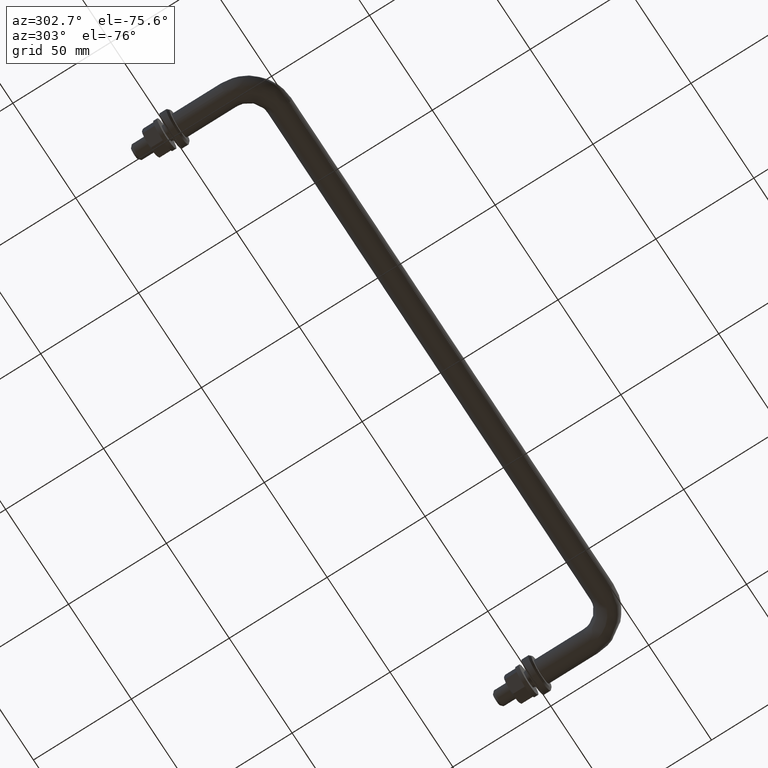
[diagram: clean part render]
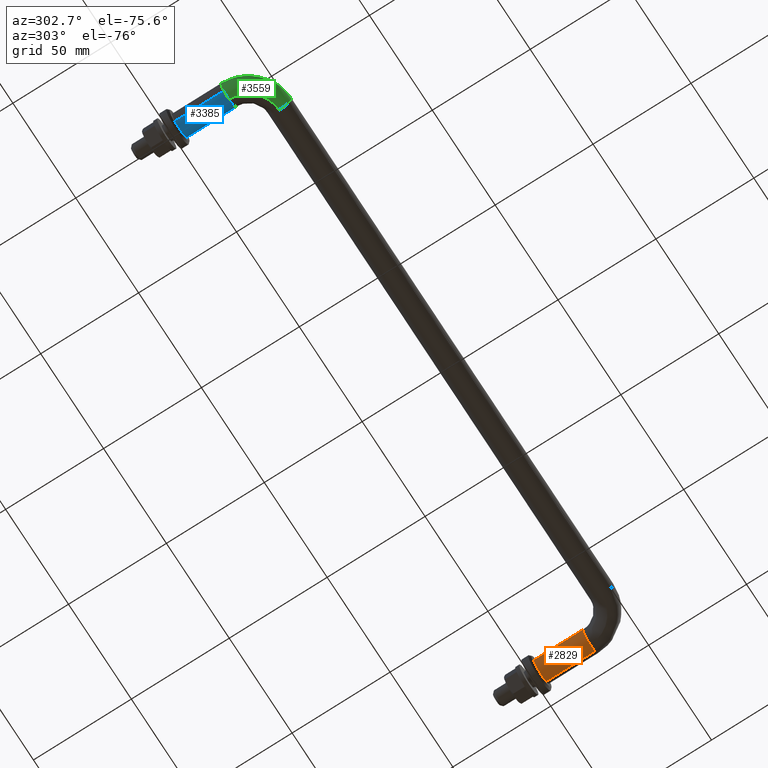
[diagram: same view with three faces highlighted in distinct colors, each labeled with its STEP entity id]
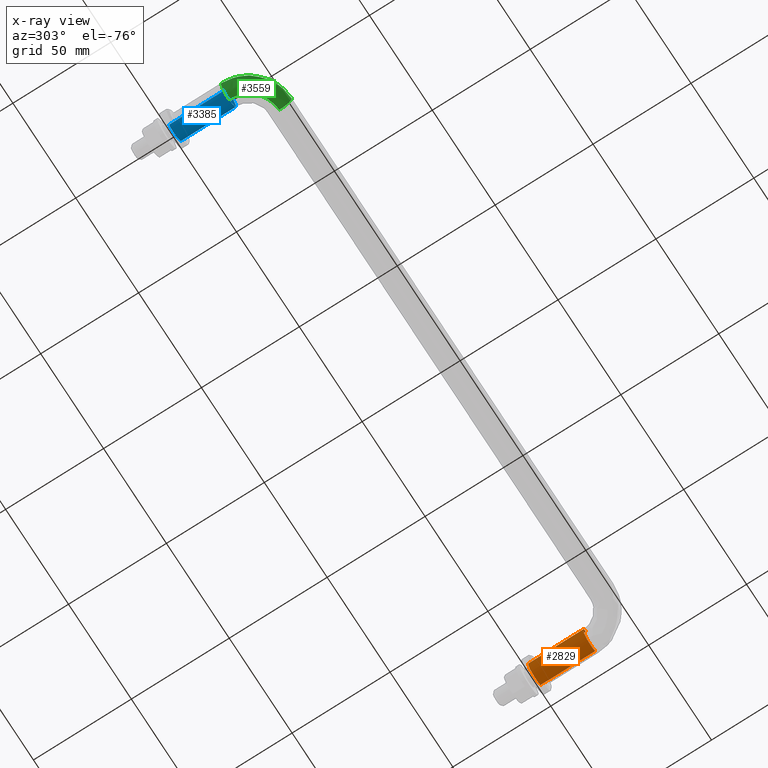
[diagram: x-ray of the same camera — body ghosted, the three highlighted faces saturated]
A machine part, auxiliary view with three faces highlighted in distinct colors.
The next image is the same camera in x-ray (body ghosted, the three faces saturated) — at least one of them is partly hidden behind the body in this view.
Their STEP definitions:

[orange] entity #2829 — the highlighted face is a freeform B-spline surface patch.
#2716=CARTESIAN_POINT('',(291.735087819825710,-28.700000002556170,-4.695648941114484));
#2717=CARTESIAN_POINT('',(287.039438878711280,-28.700000002556166,-8.430736760940201));
#2718=CARTESIAN_POINT('',(283.304351058885520,-28.700000002556170,-3.735087819825715));
#2719=CARTESIAN_POINT('',(279.569263239059810,-28.700000002556166,0.960561121288768));
#2720=CARTESIAN_POINT('',(284.264912180174290,-28.700000002556170,4.695648941114484));
#2721=CARTESIAN_POINT('',(291.735087819825710,0.717500000063940,-4.695648941114484));
#2722=CARTESIAN_POINT('',(287.039438878711280,0.717500000063940,-8.430736760940201));
#2723=CARTESIAN_POINT('',(283.304351058885520,0.717500000063939,-3.735087819825715));
#2724=CARTESIAN_POINT('',(279.569263239059810,0.717500000063939,0.960561121288768));
#2725=CARTESIAN_POINT('',(284.264912180174290,0.717500000063939,4.695648941114484));
#2733=(BOUNDED_SURFACE()B_SPLINE_SURFACE(2,1,((#2716,#2721),(#2717,#2722),(#2718,#2723),(#2719,#2724),(#2720,#2725)),.UNSPECIFIED.,.F.,.F.,.U.)B_SPLINE_SURFACE_WITH_KNOTS((3,2,3),(2,2),(0.0,9.941125496954273,19.882250993908549),(0.0,29.417500002620109),.UNSPECIFIED.)GEOMETRIC_REPRESENTATION_ITEM()RATIONAL_B_SPLINE_SURFACE(((1.0,1.0),(0.707106781186548,0.707106781186548),(1.0,1.0),(0.707106781186548,0.707106781186548),(1.0,1.0)))REPRESENTATION_ITEM('')SURFACE());
#2734=CARTESIAN_POINT('',(287.924603757332190,-28.000000002493820,-5.999526265180574));
#2735=VERTEX_POINT('',#2734);
#2736=CARTESIAN_POINT('',(291.735087819832700,-28.0,-4.695648941108911));
#2737=VERTEX_POINT('',#2736);
#2738=CARTESIAN_POINT('',(287.924603757332190,-28.000000002493820,-5.999526265180574));
#2739=CARTESIAN_POINT('',(287.962300388680550,-28.000000000000007,-6.0));
#2740=CARTESIAN_POINT('',(288.0,-28.0,-6.0));
#2741=CARTESIAN_POINT('',(290.095293800539310,-28.000000000000007,-6.0));
#2742=CARTESIAN_POINT('',(291.735087819832700,-28.000000000000007,-4.695648941108911));
#2750=(BOUNDED_CURVE()B_SPLINE_CURVE(2,(#2738,#2739,#2740,#2741,#2742),.UNSPECIFIED.,.F.,.U.)B_SPLINE_CURVE_WITH_KNOTS((3,2,3),(0.247784295724289,0.250000000000000,0.357863877391897),.UNSPECIFIED.)CURVE()GEOMETRIC_REPRESENTATION_ITEM()RATIONAL_B_SPLINE_CURVE((0.994854295189584,0.997404140970993,1.0,0.873629607027950,0.856305618643925))REPRESENTATION_ITEM(''));
#2751=EDGE_CURVE('',#2735,#2737,#2750,.T.);
#2752=ORIENTED_EDGE('',*,*,#2751,.F.);
#2753=CARTESIAN_POINT('',(282.0,-28.0,0.0));
#2754=VERTEX_POINT('',#2753);
#2755=CARTESIAN_POINT('',(282.0,-28.0,0.0));
#2756=CARTESIAN_POINT('',(282.0,-28.000000000000004,-5.925071572791519));
#2757=CARTESIAN_POINT('',(287.924603757332190,-28.000000002493820,-5.999526265180574));
#2765=(BOUNDED_CURVE()B_SPLINE_CURVE(2,(#2755,#2756,#2757),.UNSPECIFIED.,.F.,.U.)B_SPLINE_CURVE_WITH_KNOTS((3,3),(0.0,0.247784295724289),.UNSPECIFIED.)CURVE()GEOMETRIC_REPRESENTATION_ITEM()RATIONAL_B_SPLINE_CURVE((1.0,0.709702640215554,0.994854295189584))REPRESENTATION_ITEM(''));
#2766=EDGE_CURVE('',#2754,#2735,#2765,.T.);
#2767=ORIENTED_EDGE('',*,*,#2766,.F.);
#2768=CARTESIAN_POINT('',(284.264912180167190,-28.0,4.695648941108897));
#2769=VERTEX_POINT('',#2768);
#2770=CARTESIAN_POINT('',(284.264912180167300,-28.000000000000007,4.695648941108898));
#2771=CARTESIAN_POINT('',(282.000000000000110,-28.0,2.894056444894361));
#2772=CARTESIAN_POINT('',(282.0,-28.0,0.0));
#2780=(BOUNDED_CURVE()B_SPLINE_CURVE(2,(#2770,#2771,#2772),.UNSPECIFIED.,.F.,.U.)B_SPLINE_CURVE_WITH_KNOTS((3,3),(0.857863877391898,1.0),.UNSPECIFIED.)CURVE()GEOMETRIC_REPRESENTATION_ITEM()RATIONAL_B_SPLINE_CURVE((0.856305618643925,0.833477174158598,1.0))REPRESENTATION_ITEM(''));
#2781=EDGE_CURVE('',#2769,#2754,#2780,.T.);
#2782=ORIENTED_EDGE('',*,*,#2781,.F.);
#2783=CARTESIAN_POINT('',(284.264912180170430,3.394507E-014,4.695648941111408));
#2784=VERTEX_POINT('',#2783);
#2785=CARTESIAN_POINT('',(284.264912180167190,-28.0,4.695648941108897));
#2786=CARTESIAN_POINT('',(284.264912180170430,3.394507E-014,4.695648941111408));
#2787=QUASI_UNIFORM_CURVE('',1,(#2785,#2786),.UNSPECIFIED.,.F.,.U.);
#2788=EDGE_CURVE('',#2769,#2784,#2787,.T.);
#2789=ORIENTED_EDGE('',*,*,#2788,.T.);
#2790=CARTESIAN_POINT('',(282.0,3.469447E-014,0.0));
#2791=VERTEX_POINT('',#2790);
#2792=CARTESIAN_POINT('',(284.264912180170480,3.394507E-014,4.695648941111408));
#2793=CARTESIAN_POINT('',(282.000000000000060,3.469447E-014,2.894056444899332));
#2794=CARTESIAN_POINT('',(282.0,3.469447E-014,0.0));
#2802=(BOUNDED_CURVE()B_SPLINE_CURVE(2,(#2792,#2793,#2794),.UNSPECIFIED.,.F.,.U.)B_SPLINE_CURVE_WITH_KNOTS((3,3),(0.857863877391695,1.0),.UNSPECIFIED.)CURVE()GEOMETRIC_REPRESENTATION_ITEM()RATIONAL_B_SPLINE_CURVE((0.856305618643990,0.833477174158360,1.0))REPRESENTATION_ITEM(''));
#2803=EDGE_CURVE('',#2784,#2791,#2802,.T.);
#2804=ORIENTED_EDGE('',*,*,#2803,.T.);
#2805=CARTESIAN_POINT('',(291.735087819829570,3.450018E-014,-4.695648941111406));
#2806=VERTEX_POINT('',#2805);
#2807=CARTESIAN_POINT('',(282.0,3.469447E-014,0.0));
#2808=CARTESIAN_POINT('',(281.999999999999940,3.469447E-014,-6.0));
#2809=CARTESIAN_POINT('',(288.0,3.469447E-014,-6.0));
#2810=CARTESIAN_POINT('',(290.095293800534820,3.469447E-014,-6.0));
#2811=CARTESIAN_POINT('',(291.735087819829630,3.450018E-014,-4.695648941111406));
#2819=(BOUNDED_CURVE()B_SPLINE_CURVE(2,(#2807,#2808,#2809,#2810,#2811),.UNSPECIFIED.,.F.,.U.)B_SPLINE_CURVE_WITH_KNOTS((3,2,3),(0.0,0.250000000000000,0.357863877391695),.UNSPECIFIED.)CURVE()GEOMETRIC_REPRESENTATION_ITEM()RATIONAL_B_SPLINE_CURVE((1.0,0.707106781186548,1.0,0.873629607028187,0.856305618643990))REPRESENTATION_ITEM(''));
#2820=EDGE_CURVE('',#2791,#2806,#2819,.T.);
#2821=ORIENTED_EDGE('',*,*,#2820,.T.);
#2822=CARTESIAN_POINT('',(291.735087819832700,-28.0,-4.695648941108911));
#2823=CARTESIAN_POINT('',(291.735087819829570,3.450018E-014,-4.695648941111406));
#2824=QUASI_UNIFORM_CURVE('',1,(#2822,#2823),.UNSPECIFIED.,.F.,.U.);
#2825=EDGE_CURVE('',#2737,#2806,#2824,.T.);
#2826=ORIENTED_EDGE('',*,*,#2825,.F.);
#2827=EDGE_LOOP('',(#2752,#2767,#2782,#2789,#2804,#2821,#2826));
#2828=FACE_OUTER_BOUND('',#2827,.T.);
#2829=ADVANCED_FACE('',(#2828),#2733,.T.);

[blue] entity #3385 — the highlighted face is a freeform B-spline surface patch.
#3194=CARTESIAN_POINT('',(3.735087819832734,-28.0,4.695648941108905));
#3195=VERTEX_POINT('',#3194);
#3211=CARTESIAN_POINT('',(3.735087819829584,0.0,4.695648941111407));
#3212=VERTEX_POINT('',#3211);
#3213=CARTESIAN_POINT('',(3.735087819829584,0.0,4.695648941111407));
#3214=CARTESIAN_POINT('',(3.735087819832734,-28.0,4.695648941108905));
#3215=QUASI_UNIFORM_CURVE('',1,(#3213,#3214),.UNSPECIFIED.,.F.,.U.);
#3216=EDGE_CURVE('',#3212,#3195,#3215,.T.);
#3235=CARTESIAN_POINT('',(-3.735087819829584,1.110223E-015,-4.695648941111407));
#3236=VERTEX_POINT('',#3235);
#3250=CARTESIAN_POINT('',(-3.735087819832726,-28.0,-4.695648941108905));
#3251=VERTEX_POINT('',#3250);
#3252=CARTESIAN_POINT('',(-3.735087819829584,1.110223E-015,-4.695648941111407));
#3253=CARTESIAN_POINT('',(-3.735087819832726,-28.0,-4.695648941108905));
#3254=QUASI_UNIFORM_CURVE('',1,(#3252,#3253),.UNSPECIFIED.,.F.,.U.);
#3255=EDGE_CURVE('',#3236,#3251,#3254,.T.);
#3288=CARTESIAN_POINT('',(-3.735087819825715,0.700000000167415,-4.695648941114483));
#3289=CARTESIAN_POINT('',(0.960561121288767,0.700000000167416,-8.430736760940198));
#3290=CARTESIAN_POINT('',(4.695648941114483,0.700000000167416,-3.735087819825715));
#3291=CARTESIAN_POINT('',(8.430736760940198,0.700000000167417,0.960561121288767));
#3292=CARTESIAN_POINT('',(3.735087819825715,0.700000000167416,4.695648941114483));
#3293=CARTESIAN_POINT('',(-3.735087819825712,-28.717500006868171,-4.695648941114483));
#3294=CARTESIAN_POINT('',(0.960561121288771,-28.717500006868171,-8.430736760940198));
#3295=CARTESIAN_POINT('',(4.695648941114486,-28.717500006868171,-3.735087819825715));
#3296=CARTESIAN_POINT('',(8.430736760940201,-28.717500006868171,0.960561121288767));
#3297=CARTESIAN_POINT('',(3.735087819825719,-28.717500006868171,4.695648941114483));
#3305=(BOUNDED_SURFACE()B_SPLINE_SURFACE(2,1,((#3288,#3293),(#3289,#3294),(#3290,#3295),(#3291,#3296),(#3292,#3297)),.UNSPECIFIED.,.F.,.F.,.U.)B_SPLINE_SURFACE_WITH_KNOTS((3,2,3),(2,2),(0.0,9.941125496954280,19.882250993908560),(0.0,29.417500007035589),.UNSPECIFIED.)GEOMETRIC_REPRESENTATION_ITEM()RATIONAL_B_SPLINE_SURFACE(((1.0,1.0),(0.707106781186548,0.707106781186548),(1.0,1.0),(0.707106781186548,0.707106781186548),(1.0,1.0)))REPRESENTATION_ITEM('')SURFACE());
#3306=CARTESIAN_POINT('',(6.000000000000004,-28.0,0.0));
#3307=VERTEX_POINT('',#3306);
#3308=CARTESIAN_POINT('',(3.735087819832735,-28.0,4.695648941108905));
#3309=CARTESIAN_POINT('',(6.000000000000004,-28.0,2.894056444894377));
#3310=CARTESIAN_POINT('',(6.000000000000004,-28.0,0.0));
#3318=(BOUNDED_CURVE()B_SPLINE_CURVE(2,(#3308,#3309,#3310),.UNSPECIFIED.,.F.,.U.)B_SPLINE_CURVE_WITH_KNOTS((3,3),(0.857863877391898,1.0),.UNSPECIFIED.)CURVE()GEOMETRIC_REPRESENTATION_ITEM()RATIONAL_B_SPLINE_CURVE((0.856305618643925,0.833477174158597,1.0))REPRESENTATION_ITEM(''));
#3319=EDGE_CURVE('',#3195,#3307,#3318,.T.);
#3320=ORIENTED_EDGE('',*,*,#3319,.T.);
#3321=CARTESIAN_POINT('',(0.418399511654267,-28.000000001695611,-5.985394042888693));
#3322=VERTEX_POINT('',#3321);
#3323=CARTESIAN_POINT('',(6.000000000000004,-28.0,0.0));
#3324=CARTESIAN_POINT('',(6.000000000000004,-28.000000000000004,-5.595221079473488));
#3325=CARTESIAN_POINT('',(0.418399511654267,-28.000000001695611,-5.985394042888693));
#3333=(BOUNDED_CURVE()B_SPLINE_CURVE(2,(#3323,#3324,#3325),.UNSPECIFIED.,.F.,.U.)B_SPLINE_CURVE_WITH_KNOTS((3,3),(0.0,0.237833686408614),.UNSPECIFIED.)CURVE()GEOMETRIC_REPRESENTATION_ITEM()RATIONAL_B_SPLINE_CURVE((1.0,0.721360504182047,0.972879876119464))REPRESENTATION_ITEM(''));
#3334=EDGE_CURVE('',#3307,#3322,#3333,.T.);
#3335=ORIENTED_EDGE('',*,*,#3334,.T.);
#3336=CARTESIAN_POINT('',(0.418399511654267,-28.000000001695611,-5.985394042888693));
#3337=CARTESIAN_POINT('',(0.209454697457947,-28.0,-6.0));
#3338=CARTESIAN_POINT('',(3.428898E-015,-28.0,-6.0));
#3339=CARTESIAN_POINT('',(-2.095293800539282,-28.000000000000004,-5.999999999999999));
#3340=CARTESIAN_POINT('',(-3.735087819832726,-28.000000000000007,-4.695648941108905));
#3348=(BOUNDED_CURVE()B_SPLINE_CURVE(2,(#3336,#3337,#3338,#3339,#3340),.UNSPECIFIED.,.F.,.U.)B_SPLINE_CURVE_WITH_KNOTS((3,2,3),(0.237833686408614,0.250000000000000,0.357863877391897),.UNSPECIFIED.)CURVE()GEOMETRIC_REPRESENTATION_ITEM()RATIONAL_B_SPLINE_CURVE((0.972879876119464,0.985746277004500,1.0,0.873629607027951,0.856305618643925))REPRESENTATION_ITEM(''));
#3349=EDGE_CURVE('',#3322,#3251,#3348,.T.);
#3350=ORIENTED_EDGE('',*,*,#3349,.T.);
#3351=ORIENTED_EDGE('',*,*,#3255,.F.);
#3352=CARTESIAN_POINT('',(6.0,0.0,0.0));
#3353=VERTEX_POINT('',#3352);
#3354=CARTESIAN_POINT('',(6.0,0.0,0.0));
#3355=CARTESIAN_POINT('',(6.0,0.0,-6.0));
#3356=CARTESIAN_POINT('',(0.0,0.0,-6.0));
#3357=CARTESIAN_POINT('',(-2.095293800534787,0.0,-6.0));
#3358=CARTESIAN_POINT('',(-3.735087819829584,1.110223E-015,-4.695648941111407));
#3366=(BOUNDED_CURVE()B_SPLINE_CURVE(2,(#3354,#3355,#3356,#3357,#3358),.UNSPECIFIED.,.F.,.U.)B_SPLINE_CURVE_WITH_KNOTS((3,2,3),(0.0,0.250000000000000,0.357863877391695),.UNSPECIFIED.)CURVE()GEOMETRIC_REPRESENTATION_ITEM()RATIONAL_B_SPLINE_CURVE((1.0,0.707106781186548,1.0,0.873629607028188,0.856305618643990))REPRESENTATION_ITEM(''));
#3367=EDGE_CURVE('',#3353,#3236,#3366,.T.);
#3368=ORIENTED_EDGE('',*,*,#3367,.F.);
#3369=CARTESIAN_POINT('',(3.735087819829584,0.0,4.695648941111408));
#3370=CARTESIAN_POINT('',(6.000000000000001,0.0,2.894056444899332));
#3371=CARTESIAN_POINT('',(6.0,0.0,0.0));
#3379=(BOUNDED_CURVE()B_SPLINE_CURVE(2,(#3369,#3370,#3371),.UNSPECIFIED.,.F.,.U.)B_SPLINE_CURVE_WITH_KNOTS((3,3),(0.857863877391695,1.0),.UNSPECIFIED.)CURVE()GEOMETRIC_REPRESENTATION_ITEM()RATIONAL_B_SPLINE_CURVE((0.856305618643990,0.833477174158360,1.0))REPRESENTATION_ITEM(''));
#3380=EDGE_CURVE('',#3212,#3353,#3379,.T.);
#3381=ORIENTED_EDGE('',*,*,#3380,.F.);
#3382=ORIENTED_EDGE('',*,*,#3216,.T.);
#3383=EDGE_LOOP('',(#3320,#3335,#3350,#3351,#3368,#3381,#3382));
#3384=FACE_OUTER_BOUND('',#3383,.T.);
#3385=ADVANCED_FACE('',(#3384),#3305,.T.);

[green] entity #3559 — the highlighted face is a freeform B-spline surface patch.
#2969=CARTESIAN_POINT('',(16.0,-48.467994806515662,-4.004625127143493));
#2970=VERTEX_POINT('',#2969);
#2976=CARTESIAN_POINT('',(15.999999997158200,-43.581600486216288,-5.985394042739838));
#2977=VERTEX_POINT('',#2976);
#2978=CARTESIAN_POINT('',(15.999999997158199,-43.581600486216288,-5.985394042739839));
#2979=CARTESIAN_POINT('',(16.000000000000004,-43.790545300404808,-6.0));
#2980=CARTESIAN_POINT('',(16.0,-44.0,-6.0));
#2981=CARTESIAN_POINT('',(15.999999999999998,-46.679557554471145,-5.999999999999999));
#2982=CARTESIAN_POINT('',(16.000000000000007,-48.467994806515669,-4.004625127143492));
#2990=(BOUNDED_CURVE()B_SPLINE_CURVE(2,(#2978,#2979,#2980,#2981,#2982),.UNSPECIFIED.,.F.,.U.)B_SPLINE_CURVE_WITH_KNOTS((3,2,3),(0.237833686286240,0.250000000000000,0.383245959685833),.UNSPECIFIED.)CURVE()GEOMETRIC_REPRESENTATION_ITEM()RATIONAL_B_SPLINE_CURVE((0.972879875860633,0.985746276861130,1.0,0.843892647894915,0.854190687351881))REPRESENTATION_ITEM(''));
#2991=EDGE_CURVE('',#2977,#2970,#2990,.T.);
#3125=CARTESIAN_POINT('',(15.999999998300160,-44.075396249737437,5.999526265091729));
#3126=VERTEX_POINT('',#3125);
#3142=CARTESIAN_POINT('',(16.0,-49.999999999999993,0.0));
#3143=VERTEX_POINT('',#3142);
#3144=CARTESIAN_POINT('',(16.0,-49.999999999999993,0.0));
#3145=CARTESIAN_POINT('',(16.000000000000004,-49.999999999999986,5.925071558826640));
#3146=CARTESIAN_POINT('',(15.999999998300162,-44.075396249737437,5.999526265091729));
#3154=(BOUNDED_CURVE()B_SPLINE_CURVE(2,(#3144,#3145,#3146),.UNSPECIFIED.,.F.,.U.)B_SPLINE_CURVE_WITH_KNOTS((3,3),(0.500000000000000,0.747784295309819),.UNSPECIFIED.)CURVE()GEOMETRIC_REPRESENTATION_ITEM()RATIONAL_B_SPLINE_CURVE((1.0,0.709702640701137,0.994854294235634))REPRESENTATION_ITEM(''));
#3155=EDGE_CURVE('',#3143,#3126,#3154,.T.);
#3157=CARTESIAN_POINT('',(16.000000000000007,-48.467994806515662,-4.004625127143493));
#3158=CARTESIAN_POINT('',(15.999999999999996,-50.0,-2.295353714534689));
#3159=CARTESIAN_POINT('',(16.0,-49.999999999999993,0.0));
#3167=(BOUNDED_CURVE()B_SPLINE_CURVE(2,(#3157,#3158,#3159),.UNSPECIFIED.,.F.,.U.)B_SPLINE_CURVE_WITH_KNOTS((3,3),(0.383245959685834,0.500000000000000),.UNSPECIFIED.)CURVE()GEOMETRIC_REPRESENTATION_ITEM()RATIONAL_B_SPLINE_CURVE((0.854190687351881,0.863214133291633,1.0))REPRESENTATION_ITEM(''));
#3168=EDGE_CURVE('',#2970,#3143,#3167,.T.);
#3192=CARTESIAN_POINT('',(-0.075396270194108,-28.000000006696570,5.999526264834650));
#3193=VERTEX_POINT('',#3192);
#3250=CARTESIAN_POINT('',(-3.735087819832726,-28.0,-4.695648941108905));
#3251=VERTEX_POINT('',#3250);
#3257=CARTESIAN_POINT('',(-5.999999999999996,-28.0,0.0));
#3258=VERTEX_POINT('',#3257);
#3259=CARTESIAN_POINT('',(-3.735087819832726,-28.0,-4.695648941108905));
#3260=CARTESIAN_POINT('',(-5.999999999999997,-28.0,-2.894056444894377));
#3261=CARTESIAN_POINT('',(-5.999999999999996,-28.0,0.0));
#3269=(BOUNDED_CURVE()B_SPLINE_CURVE(2,(#3259,#3260,#3261),.UNSPECIFIED.,.F.,.U.)B_SPLINE_CURVE_WITH_KNOTS((3,3),(0.357863877391898,0.500000000000000),.UNSPECIFIED.)CURVE()GEOMETRIC_REPRESENTATION_ITEM()RATIONAL_B_SPLINE_CURVE((0.856305618643925,0.833477174158597,1.0))REPRESENTATION_ITEM(''));
#3270=EDGE_CURVE('',#3251,#3258,#3269,.T.);
#3272=CARTESIAN_POINT('',(-5.999999999999996,-28.0,0.0));
#3273=CARTESIAN_POINT('',(-5.999999999999996,-28.0,5.925071518417884));
#3274=CARTESIAN_POINT('',(-0.075396270194108,-28.000000006696574,5.999526264834650));
#3282=(BOUNDED_CURVE()B_SPLINE_CURVE(2,(#3272,#3273,#3274),.UNSPECIFIED.,.F.,.U.)B_SPLINE_CURVE_WITH_KNOTS((3,3),(0.500000000000000,0.747784294110507),.UNSPECIFIED.)CURVE()GEOMETRIC_REPRESENTATION_ITEM()RATIONAL_B_SPLINE_CURVE((1.0,0.709702642106218,0.994854291475283))REPRESENTATION_ITEM(''));
#3283=EDGE_CURVE('',#3258,#3193,#3282,.T.);
#3321=CARTESIAN_POINT('',(0.418399511654267,-28.000000001695611,-5.985394042888693));
#3322=VERTEX_POINT('',#3321);
#3336=CARTESIAN_POINT('',(0.418399511654267,-28.000000001695611,-5.985394042888693));
#3337=CARTESIAN_POINT('',(0.209454697457947,-28.0,-6.0));
#3338=CARTESIAN_POINT('',(3.428898E-015,-28.0,-6.0));
#3339=CARTESIAN_POINT('',(-2.095293800539282,-28.000000000000004,-5.999999999999999));
#3340=CARTESIAN_POINT('',(-3.735087819832726,-28.000000000000007,-4.695648941108905));
#3348=(BOUNDED_CURVE()B_SPLINE_CURVE(2,(#3336,#3337,#3338,#3339,#3340),.UNSPECIFIED.,.F.,.U.)B_SPLINE_CURVE_WITH_KNOTS((3,2,3),(0.237833686408614,0.250000000000000,0.357863877391897),.UNSPECIFIED.)CURVE()GEOMETRIC_REPRESENTATION_ITEM()RATIONAL_B_SPLINE_CURVE((0.972879876119464,0.985746277004500,1.0,0.873629607027951,0.856305618643925))REPRESENTATION_ITEM(''));
#3349=EDGE_CURVE('',#3322,#3251,#3348,.T.);
#3490=CARTESIAN_POINT('',(0.546684214952147,-26.922813445178942,-5.979047719642695));
#3491=CARTESIAN_POINT('',(-0.691927032450725,-44.691927490803074,-5.979047719642693));
#3492=CARTESIAN_POINT('',(17.077186979161752,-43.453315755468822,-5.979047719642697));
#3493=CARTESIAN_POINT('',(0.501269885107067,-26.919647800589416,-5.982230037295752));
#3494=CARTESIAN_POINT('',(-0.740981403081991,-44.740981862781361,-5.982230037295751));
#3495=CARTESIAN_POINT('',(17.080352624998341,-43.498730085226974,-5.982230037295754));
#3496=CARTESIAN_POINT('',(0.285231963537030,-26.904588693037091,-5.997368459328781));
#3497=CARTESIAN_POINT('',(-0.974335155328387,-44.974335621435536,-5.997368459328783));
#3498=CARTESIAN_POINT('',(17.095411738482944,-43.714768006383508,-5.997368459328781));
#3499=CARTESIAN_POINT('',(0.113943897119562,-26.892648912299236,-5.999526265222896));
#3500=CARTESIAN_POINT('',(-1.159352270486051,-45.159352741673686,-5.999526265222896));
#3501=CARTESIAN_POINT('',(17.107351523924276,-43.886056072473103,-5.999526265222895));
#3502=CARTESIAN_POINT('',(-5.871059703111108,-26.475459132552292,-6.074922504523007));
#3503=CARTESIAN_POINT('',(-7.624064748611073,-51.624065397316620,-6.074922504523005));
#3504=CARTESIAN_POINT('',(17.524541468016576,-49.871059661247941,-6.074922504523006));
#3505=CARTESIAN_POINT('',(-5.946273435613747,-26.470216295188671,-0.075396239300112));
#3506=CARTESIAN_POINT('',(-7.705306997992081,-51.705307648928503,-0.075396239300112));
#3507=CARTESIAN_POINT('',(17.529784307445532,-49.946273393606596,-0.075396239300112));
#3508=CARTESIAN_POINT('',(-6.021487168116381,-26.464973457825039,5.924130025922782));
#3509=CARTESIAN_POINT('',(-7.786549247373084,-51.786549900540393,5.924130025922781));
#3510=CARTESIAN_POINT('',(17.535027146874498,-50.021487125965294,5.924130025922783));
#3511=CARTESIAN_POINT('',(0.007550426850910,-26.885232664725688,6.000080984622626));
#3512=CARTESIAN_POINT('',(-1.274273370084099,-45.274273844427405,6.000080984622628));
#3513=CARTESIAN_POINT('',(17.114767774419342,-43.992449542538090,6.000080984622624));
#3514=CARTESIAN_POINT('',(0.051316847191457,-26.888283440377940,6.000632333246907));
#3515=CARTESIAN_POINT('',(-1.226998991888655,-45.226999464933833,6.000632333246908));
#3516=CARTESIAN_POINT('',(17.111716997565292,-43.948683122281331,6.000632333246906));
#3524=(BOUNDED_SURFACE()B_SPLINE_SURFACE(2,2,((#3490,#3493,#3496,#3499,#3502,#3505,#3508,#3511,#3514),(#3491,#3494,#3497,#3500,#3503,#3506,#3509,#3512,#3515),(#3492,#3495,#3498,#3501,#3504,#3507,#3510,#3513,#3516)),.UNSPECIFIED.,.F.,.F.,.U.)B_SPLINE_SURFACE_WITH_KNOTS((3,3),(3,1,2,2,1,3),(0.0,40.091364059811198),(0.0,0.103626247530114,0.501270888184443,10.442396385138730,20.383521882093010,20.487274668891700),.UNSPECIFIED.)GEOMETRIC_REPRESENTATION_ITEM()RATIONAL_B_SPLINE_SURFACE(((0.896240622281795,0.898830860831942,0.911360612797192,0.922164430830710,0.652068722409428,0.922164430830710,0.652068722409428,0.924983345294636,0.927802259758563),(0.588135464700462,0.589835243884200,0.598057579841146,0.605147314876259,0.427903769965834,0.605147314876259,0.427903769965834,0.606997156901910,0.608846998927561),(0.896240633494106,0.898830872076658,0.911360624198660,0.922164442367337,0.652068730567055,0.922164442367337,0.652068730567055,0.924983356866530,0.927802271365722)))REPRESENTATION_ITEM('')SURFACE());
#3525=ORIENTED_EDGE('',*,*,#2991,.T.);
#3526=ORIENTED_EDGE('',*,*,#3168,.T.);
#3527=ORIENTED_EDGE('',*,*,#3155,.T.);
#3528=CARTESIAN_POINT('',(-0.075396270194108,-28.000000006696570,5.999526264834651));
#3529=CARTESIAN_POINT('',(-0.075396225906964,-44.075396235900442,5.999526265222895));
#3530=CARTESIAN_POINT('',(15.999999998300167,-44.075396249737437,5.999526265091729));
#3538=(BOUNDED_CURVE()B_SPLINE_CURVE(2,(#3528,#3529,#3530),.UNSPECIFIED.,.F.,.U.)B_SPLINE_CURVE_WITH_KNOTS((3,3),(-1.744561812438314,-0.255438186907095),.UNSPECIFIED.)CURVE()GEOMETRIC_REPRESENTATION_ITEM()RATIONAL_B_SPLINE_CURVE((0.894678509733661,0.632633241626431,0.894678509964042))REPRESENTATION_ITEM(''));
#3539=EDGE_CURVE('',#3193,#3126,#3538,.T.);
#3540=ORIENTED_EDGE('',*,*,#3539,.F.);
#3541=ORIENTED_EDGE('',*,*,#3283,.F.);
#3542=ORIENTED_EDGE('',*,*,#3270,.F.);
#3543=ORIENTED_EDGE('',*,*,#3349,.F.);
#3544=CARTESIAN_POINT('',(0.418399511654267,-28.000000001695614,-5.985394042888692));
#3545=CARTESIAN_POINT('',(0.418399512843871,-43.581600484863735,-5.985394043042593));
#3546=CARTESIAN_POINT('',(15.999999997158193,-43.581600486216296,-5.985394042739838));
#3554=(BOUNDED_CURVE()B_SPLINE_CURVE(2,(#3544,#3545,#3546),.UNSPECIFIED.,.F.,.U.)B_SPLINE_CURVE_WITH_KNOTS((3,3),(-1.744561813086419,-0.255438187068496),.UNSPECIFIED.)CURVE()GEOMETRIC_REPRESENTATION_ITEM()RATIONAL_B_SPLINE_CURVE((0.874553433334360,0.618402663381941,0.874553433281065))REPRESENTATION_ITEM(''));
#3555=EDGE_CURVE('',#3322,#2977,#3554,.T.);
#3556=ORIENTED_EDGE('',*,*,#3555,.T.);
#3557=EDGE_LOOP('',(#3525,#3526,#3527,#3540,#3541,#3542,#3543,#3556));
#3558=FACE_OUTER_BOUND('',#3557,.T.);
#3559=ADVANCED_FACE('',(#3558),#3524,.T.);